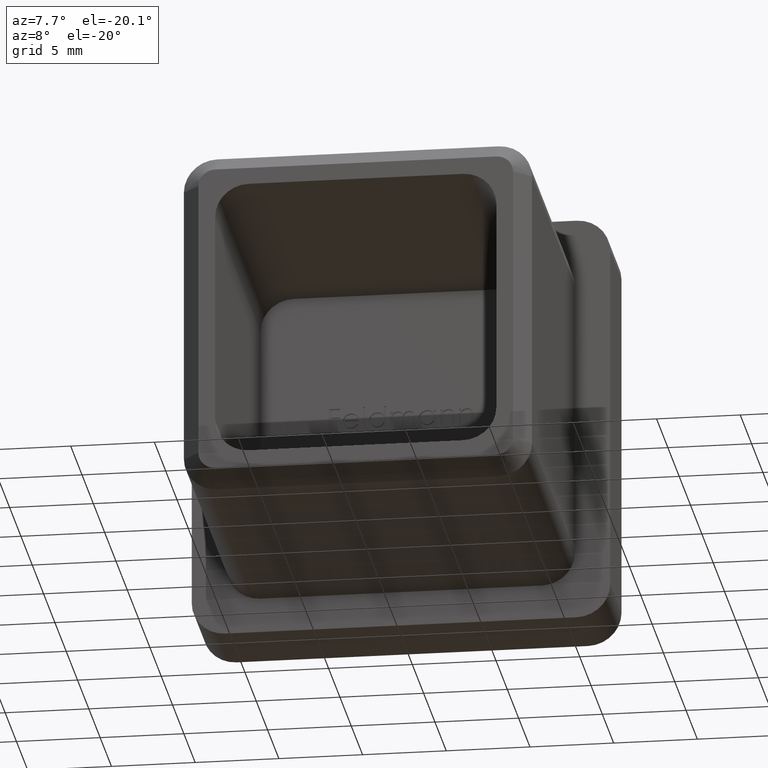
[diagram: clean part render]
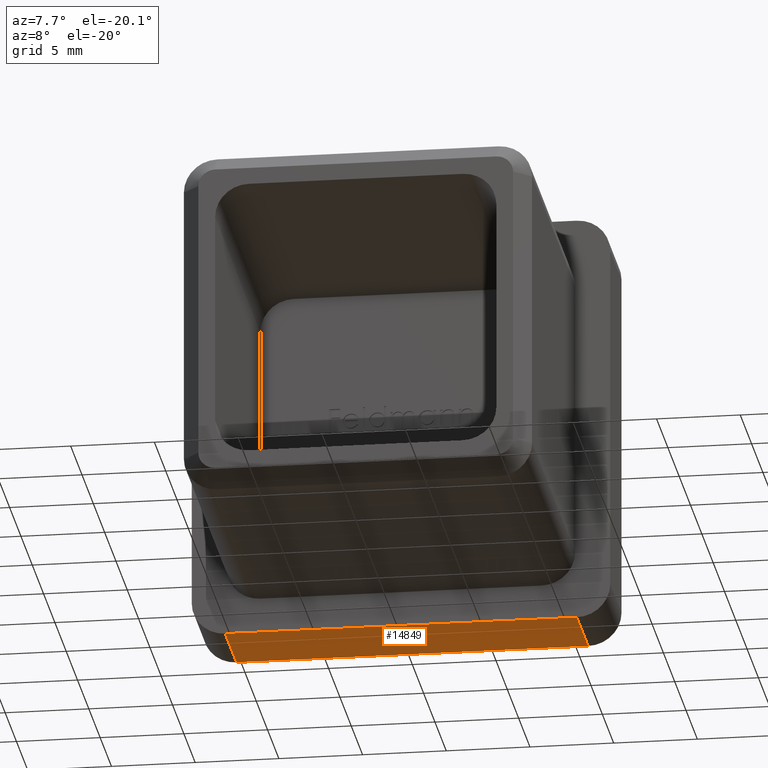
[diagram: same view with one face highlighted and labeled with its STEP entity id]
A machine part, auxiliary view. The second image highlights one B-rep face of the part: STEP entity #14849.
In plain terms, the highlighted planar face has unit normal (0, 0, 1).
Its self-contained STEP definition (entity closure, byte-faithful):
#745 = EDGE_CURVE ( 'NONE', #757, #6322, #2566, .T. ) ;
#757 = VERTEX_POINT ( 'NONE', #11798 ) ;
#1092 = DIRECTION ( 'NONE',  ( 0.0000000000000000000, 0.0000000000000000000, 1.000000000000000000 ) ) ;
#1182 = EDGE_CURVE ( 'NONE', #5033, #8733, #11562, .T. ) ;
#1441 = CARTESIAN_POINT ( 'NONE',  ( -12.50000000000000000, 5.000000000000000000, -12.50000000000000400 ) ) ;
#1900 = CARTESIAN_POINT ( 'NONE',  ( -10.50000000000000000, 0.0000000000000000000, -12.50000000000000400 ) ) ;
#2566 = LINE ( 'NONE', #1441, #3107 ) ;
#2582 = ORIENTED_EDGE ( 'NONE', *, *, #9488, .T. ) ;
#2743 = CARTESIAN_POINT ( 'NONE',  ( -10.50000000000000000, 5.000000000000000000, -12.50000000000000400 ) ) ;
#2990 = CARTESIAN_POINT ( 'NONE',  ( -10.50000000000000000, 5.000000000000000000, -12.50000000000000400 ) ) ;
#3107 = VECTOR ( 'NONE', #5004, 1000.000000000000000 ) ;
#3256 = DIRECTION ( 'NONE',  ( 1.000000000000000000, 0.0000000000000000000, -0.0000000000000000000 ) ) ;
#3325 = FACE_OUTER_BOUND ( 'NONE', #10688, .T. ) ;
#3983 = CARTESIAN_POINT ( 'NONE',  ( 10.49999999999999800, 0.0000000000000000000, -12.50000000000000400 ) ) ;
#4893 = ORIENTED_EDGE ( 'NONE', *, *, #12043, .T. ) ;
#5004 = DIRECTION ( 'NONE',  ( -1.000000000000000000, -0.0000000000000000000, -0.0000000000000000000 ) ) ;
#5033 = VERTEX_POINT ( 'NONE', #3983 ) ;
#5150 = DIRECTION ( 'NONE',  ( -1.000000000000000000, -0.0000000000000000000, -0.0000000000000000000 ) ) ;
#5836 = VECTOR ( 'NONE', #9465, 1000.000000000000000 ) ;
#6156 = VECTOR ( 'NONE', #7376, 1000.000000000000000 ) ;
#6184 = ORIENTED_EDGE ( 'NONE', *, *, #1182, .T. ) ;
#6322 = VERTEX_POINT ( 'NONE', #2743 ) ;
#6405 = CARTESIAN_POINT ( 'NONE',  ( -12.50000000000000000, 0.0000000000000000000, -12.50000000000000400 ) ) ;
#6898 = LINE ( 'NONE', #2990, #6156 ) ;
#7376 = DIRECTION ( 'NONE',  ( -0.0000000000000000000, 1.000000000000000000, -0.0000000000000000000 ) ) ;
#8002 = PLANE ( 'NONE',  #8766 ) ;
#8733 = VERTEX_POINT ( 'NONE', #1900 ) ;
#8766 = AXIS2_PLACEMENT_3D ( 'NONE', #12504, #1092, #3256 ) ;
#8888 = LINE ( 'NONE', #12986, #5836 ) ;
#9465 = DIRECTION ( 'NONE',  ( 0.0000000000000000000, -1.000000000000000000, 0.0000000000000000000 ) ) ;
#9488 = EDGE_CURVE ( 'NONE', #757, #5033, #8888, .T. ) ;
#10688 = EDGE_LOOP ( 'NONE', ( #14541, #2582, #6184, #4893 ) ) ;
#11562 = LINE ( 'NONE', #6405, #14049 ) ;
#11798 = CARTESIAN_POINT ( 'NONE',  ( 10.49999999999999800, 5.000000000000000000, -12.50000000000000400 ) ) ;
#12043 = EDGE_CURVE ( 'NONE', #8733, #6322, #6898, .T. ) ;
#12504 = CARTESIAN_POINT ( 'NONE',  ( -12.50000000000000000, 5.000000000000000000, -12.50000000000000400 ) ) ;
#12986 = CARTESIAN_POINT ( 'NONE',  ( 10.49999999999999800, 5.000000000000000000, -12.50000000000000400 ) ) ;
#14049 = VECTOR ( 'NONE', #5150, 1000.000000000000000 ) ;
#14541 = ORIENTED_EDGE ( 'NONE', *, *, #745, .F. ) ;
#14849 = ADVANCED_FACE ( 'NONE', ( #3325 ), #8002, .F. ) ;